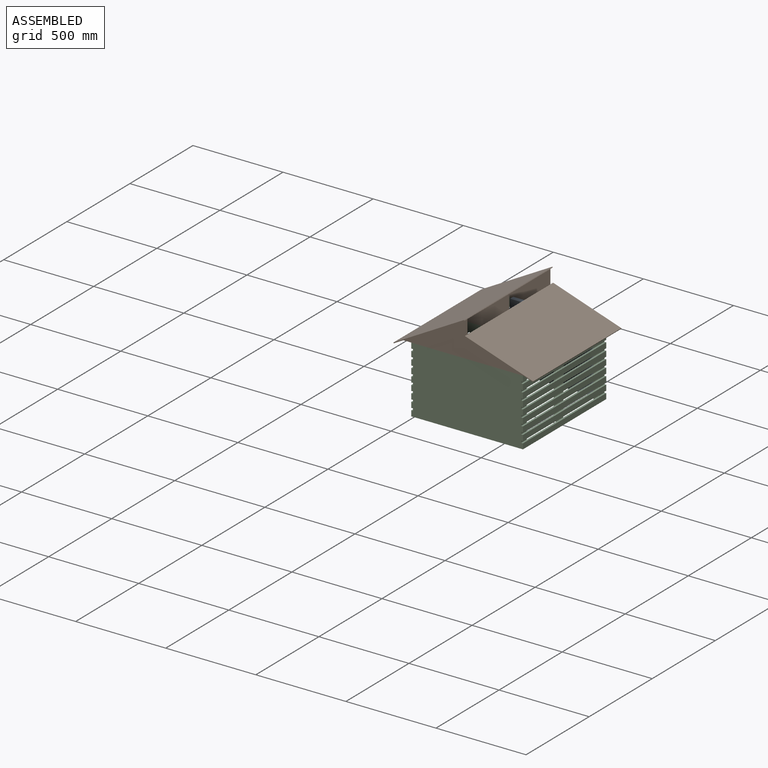
[diagram: assembled view]
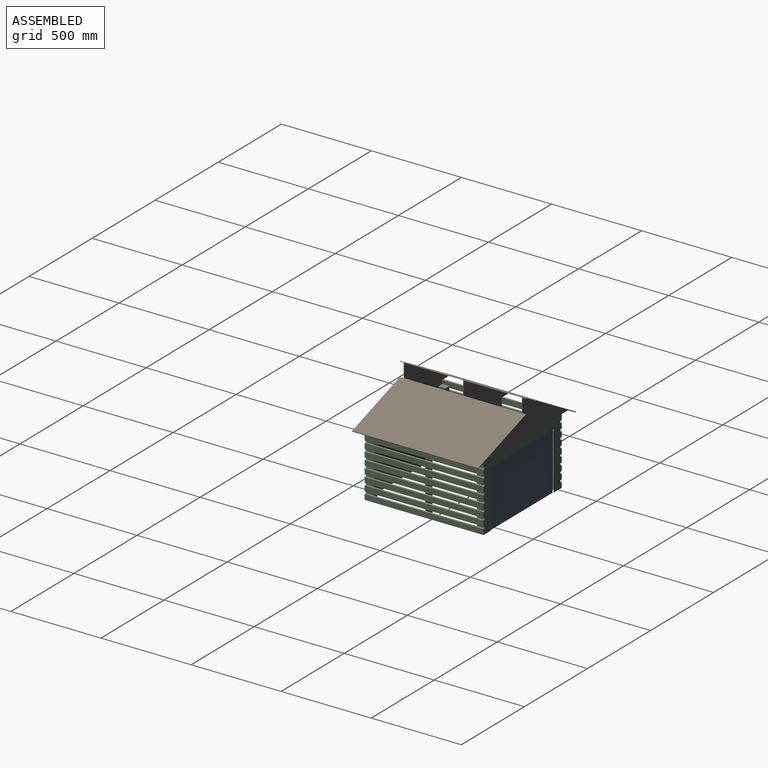
[diagram: assembled view, second angle]
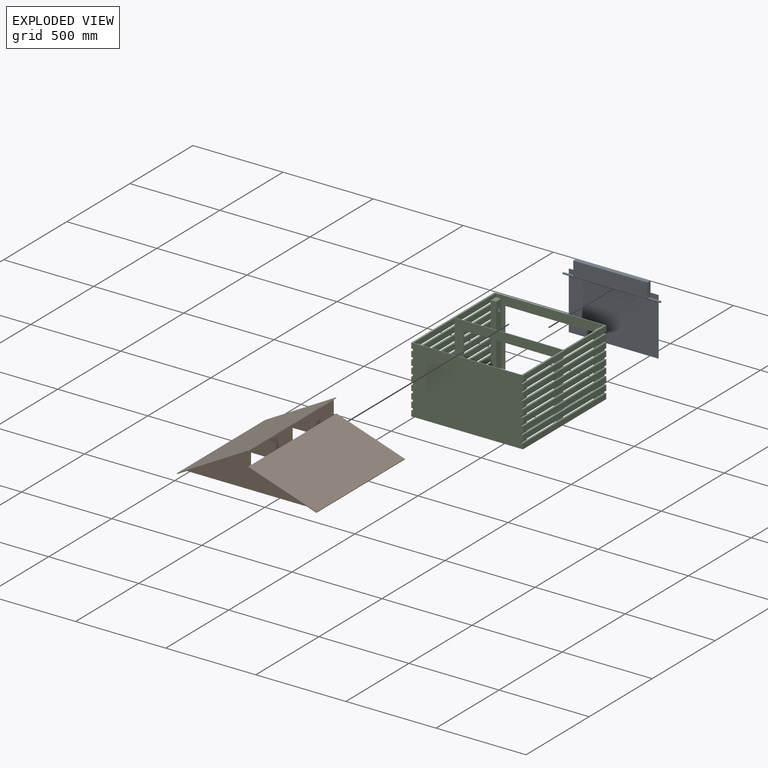
[diagram: exploded view]
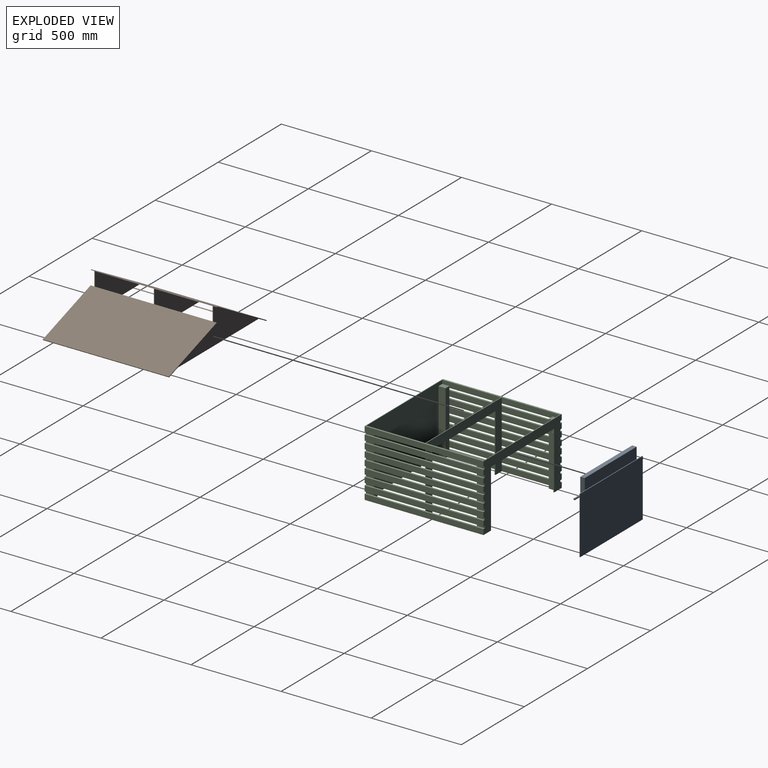
[diagram: exploded view, second angle]
ASSEMBLY  parts=3 mates=2
PART A: 16 faces, bbox 541x29x380 mm
  f0: plane 411.5x9.5mm, normal (0,0,-1), area 3909.3mm2, adj f2,f4,f5,f8
  f1: plane 411.5x9.5mm, normal (0,0,-1), area 3909.3mm2, adj f2,f3,f4,f5
  f2: plane 81x25mm, normal (1,0,0), area 2020.9mm2, adj f0,f1,f3,f5,f8,f14,f15
  f3: plane 411.5x81mm, normal (0,-1,0), area 33331.5mm2, adj f1,f2,f4,f15
  f4: plane 81x25mm, normal (-1,0,0), area 2020.9mm2, adj f0,f1,f3,f5,f8,f14,f15
  f5: cylinder r=5mm len=541mm, axis (-1,0,0), area 14348mm2, adj f0,f1,f2,f4,f6,f7
  f6: plane 10x10mm, normal (1,0,0), area 78.5mm2, adj f5
  f7: plane 10x10mm, normal (-1,0,0), area 78.5mm2, adj f5
  f8: plane 496x318mm, normal (0,-1,0), area 149909.5mm2, adj f0,f2,f4,f9,f10,f11,f12
  f9: plane 496x4mm, normal (0,0,1), area 1984mm2, adj f8,f10,f12,f13,f14
  f10: plane 318x4mm, normal (-1,0,0), area 1272mm2, adj f8,f9,f11,f13
  f11: plane 496x4mm, normal (0,0,-1), area 1984mm2, adj f8,f10,f12,f13
  f12: plane 318x4mm, normal (1,0,0), area 1272mm2, adj f8,f9,f11,f13
  f13: plane 496x318mm, normal (0,1,0), area 157728mm2, adj f9,f10,f11,f12
  f14: plane 411.5x62mm, normal (0,1,0), area 25513mm2, adj f2,f4,f9,f15
  f15: plane 411.5x25mm, normal (0,0,1), area 10287.5mm2, adj f2,f3,f4,f14
PART B: 38 faces, bbox 776.1x700x222 mm
  f0: plane 720x200.14mm, normal (0,-1,0), area 57684.6mm2, adj f4,f5,f12,f13,f14,f18,f19,f25
  f1: plane 720x200.14mm, normal (0,1,0), area 57687.4mm2, adj f9,f11,f12,f13,f14,f25,f31,f37
  f2: plane 720x200.14mm, normal (0,-1,0), area 57684.6mm2, adj f8,f10,f15,f16,f17,f23,f24,f25
  f3: plane 720x200.14mm, normal (0,1,0), area 57684.6mm2, adj f4,f5,f15,f16,f17,f18,f19,f25
  f4: plane 322x0.14mm, normal (1,0,0), area 45.4mm2, adj f0,f3,f18,f37
  f5: plane 322x0.14mm, normal (-1,0,0), area 45.4mm2, adj f0,f3,f19,f37
  f6: plane 720x200.14mm, normal (0,1,0), area 57684.6mm2, adj f8,f10,f20,f21,f22,f23,f24,f25
  f7: plane 720x200.14mm, normal (0,-1,0), area 57687.4mm2, adj f9,f11,f20,f21,f22,f25,f31,f37
  f8: plane 326x0.14mm, normal (1,0,0), area 45.9mm2, adj f2,f6,f23,f37
  f9: plane 660x0.14mm, normal (-1,0,0), area 93mm2, adj f1,f7,f12,f15,f18,f20,f23,f37
  f10: plane 326x0.14mm, normal (-1,0,0), area 45.9mm2, adj f2,f6,f24,f37
  f11: plane 660x0.14mm, normal (1,0,0), area 93mm2, adj f1,f7,f13,f16,f19,f21,f24,f37
  f12: plane 50x4mm, normal (0,0,-1), area 200mm2, adj f0,f1,f9,f31
  f13: plane 50x4mm, normal (0,0,-1), area 200mm2, adj f0,f1,f11,f25
  f14: plane 80x4mm, normal (1,0,0), area 320mm2, adj f0,f1,f28,f34
  f15: plane 50x4mm, normal (0,0,-1), area 200mm2, adj f2,f3,f9,f31
  f16: plane 50x4mm, normal (0,0,-1), area 200mm2, adj f2,f3,f11,f25
  f17: plane 80x4mm, normal (1,0,0), area 320mm2, adj f2,f3,f28,f34
  f18: plane 322x10mm, normal (0,0,1), area 3220mm2, adj f0,f3,f4,f9
  f19: plane 322x10mm, normal (0,0,1), area 3220mm2, adj f0,f3,f5,f11
  f20: plane 50x4mm, normal (0,0,-1), area 200mm2, adj f6,f7,f9,f31
  f21: plane 50x4mm, normal (0,0,-1), area 200mm2, adj f6,f7,f11,f25
  f22: plane 80x4mm, normal (1,0,0), area 320mm2, adj f6,f7,f28,f34
  f23: plane 326x10mm, normal (0,0,1), area 3260mm2, adj f2,f6,f8,f9
  f24: plane 326x10mm, normal (0,0,1), area 3260mm2, adj f2,f6,f10,f11
  f25: plane 700x379.47mm, normal (-0.32,0,-0.95), area 275446.3mm2, adj f0,f1,f2,f3,f6,f7,f13,f16
  f26: plane 700x3.79mm, normal (0.95,0,-0.32), area 2800mm2, adj f25,f27,f29,f30
  f27: plane 380.74x130.29mm, normal (0,1,0), area 1600mm2, adj f25,f26,f28,f30
  f28: plane 700x3.79mm, normal (-0.95,0,0.32), area 2800mm2, adj f14,f17,f22,f25,f27,f29,f30
  f29: plane 380.74x130.29mm, normal (0,-1,0), area 1600mm2, adj f25,f26,f28,f30
  f30: plane 700x379.47mm, normal (0.32,0,0.95), area 280000mm2, adj f26,f27,f28,f29
  f31: plane 700x393.37mm, normal (0.49,0,-0.87), area 310058.1mm2, adj f0,f1,f2,f3,f6,f7,f12,f15
  f32: plane 700x3.5mm, normal (-0.87,0,-0.49), area 2800mm2, adj f31,f33,f35,f36
  f33: plane 395.31x222.04mm, normal (0,-1,0), area 1800mm2, adj f31,f32,f34,f36
  f34: plane 700x3.5mm, normal (0.87,0,0.49), area 2800mm2, adj f14,f17,f22,f31,f33,f35,f36
  f35: plane 395.31x222.04mm, normal (0,1,0), area 1800mm2, adj f31,f32,f34,f36
  f36: plane 700x393.37mm, normal (-0.49,0,0.87), area 315000mm2, adj f32,f33,f34,f35
  f37: plane 660x620mm, normal (0,0,-1), area 20400mm2, adj f0,f1,f2,f3,f4,f5,f6,f7
PART C: 193 faces, bbox 620x660x370 mm
  f0: cylinder r=5mm len=10mm, axis (-1,0,0), area 149.2mm2, adj f2,f188
  f1: cylinder r=10mm len=20mm, axis (-1,0,0), area 298.5mm2, adj f2,f98
  f2: plane 20x20mm, normal (1,0,0), area 235.6mm2, adj f0,f1
  f3: plane 660x30mm, normal (1,0,0), area 19800mm2, adj f4,f50,f181,f185
  f4: plane 660x620mm, normal (0,0,1), area 20400mm2, adj f3,f60,f94,f100,f132,f134,f181,f182
  f5: plane 660x30mm, normal (1,0,0), area 19800mm2, adj f36,f37,f181,f185
  f6: plane 660x30mm, normal (1,0,0), area 19800mm2, adj f33,f34,f181,f185
  f7: plane 660x30mm, normal (1,0,0), area 19800mm2, adj f32,f161,f181,f185
  f8: plane 660x30mm, normal (1,0,0), area 19800mm2, adj f28,f29,f181,f185
  f9: plane 660x30mm, normal (1,0,0), area 19800mm2, adj f25,f26,f181,f185
  f10: plane 660x30mm, normal (1,0,0), area 19800mm2, adj f22,f23,f181,f185
  f11: plane 660x30mm, normal (1,0,0), area 19800mm2, adj f19,f20,f181,f185
  f12: plane 350x30mm, normal (0,1,0), area 10500mm2, adj f13,f14,f15,f161
  f13: plane 350x39.78mm, normal (1,0,0), area 13923.8mm2, adj f12,f15,f161,f182
  f14: plane 350x39.77mm, normal (-1,0,0), area 13920mm2, adj f12,f15,f161,f182
  f15: plane 39.78x30.01mm, normal (0,0,1), area 1193.3mm2, adj f12,f13,f14,f182
  f16: plane 660x10mm, normal (0,0,1), area 6595.4mm2, adj f18,f43,f57,f59,f64,f118,f124,f145
  f17: plane 660x10mm, normal (0,0,-1), area 6595.4mm2, adj f18,f49,f56,f59,f65,f119,f124,f146
  f18: plane 286.01x30mm, normal (-1,0,0), area 8580.2mm2, adj f16,f17,f59,f184
  f19: plane 660x10mm, normal (0,0,-1), area 6595.2mm2, adj f11,f21,f43,f57,f59,f64,f118,f125
  f20: plane 660x10mm, normal (0,0,1), area 6595.2mm2, adj f11,f21,f48,f58,f59,f63,f117,f125
  f21: plane 286.01x30mm, normal (-1,0,0), area 8580.2mm2, adj f19,f20,f59,f184
  f22: plane 660x10mm, normal (0,0,1), area 6595.4mm2, adj f10,f24,f49,f56,f59,f65,f119,f126
  f23: plane 660x10mm, normal (0,0,-1), area 6595.4mm2, adj f10,f24,f47,f55,f59,f66,f120,f126
  f24: plane 286.01x30mm, normal (-1,0,0), area 8580.2mm2, adj f22,f23,f59,f184
  f25: plane 660x10mm, normal (0,0,-1), area 6595.4mm2, adj f9,f27,f46,f54,f59,f67,f121,f127
  f26: plane 660x10mm, normal (0,0,1), area 6595.4mm2, adj f9,f27,f47,f55,f59,f66,f120,f127
  f27: plane 286.01x30mm, normal (-1,0,0), area 8580.2mm2, adj f25,f26,f59,f184
  f28: plane 660x10mm, normal (0,0,1), area 6595.4mm2, adj f8,f30,f46,f54,f59,f67,f121,f128
  f29: plane 660x10mm, normal (0,0,-1), area 6595.4mm2, adj f8,f30,f45,f51,f59,f68,f122,f128
  f30: plane 286.01x30mm, normal (-1,0,0), area 8580.2mm2, adj f28,f29,f59,f184
  f31: plane 286.01x30mm, normal (-1,0,0), area 8580.2mm2, adj f32,f59,f161,f184
  f32: plane 660x10mm, normal (0,0,1), area 6595.2mm2, adj f7,f31,f44,f53,f59,f70,f116,f129
  f33: plane 660x10mm, normal (0,0,1), area 6595.4mm2, adj f6,f35,f41,f52,f59,f69,f123,f130
  f34: plane 660x10mm, normal (0,0,-1), area 6595.4mm2, adj f6,f35,f44,f53,f59,f70,f116,f130
  f35: plane 286.01x30mm, normal (-1,0,0), area 8580.2mm2, adj f33,f34,f59,f184
  f36: plane 660x10mm, normal (0,0,1), area 6595.2mm2, adj f5,f38,f45,f51,f59,f68,f122,f131
  f37: plane 660x10mm, normal (0,0,-1), area 6595.2mm2, adj f5,f38,f41,f52,f59,f69,f123,f131
  f38: plane 286.01x30mm, normal (-1,0,0), area 8580.2mm2, adj f36,f37,f59,f184
  f39: plane 40x30mm, normal (0,0,1), area 1199.9mm2, adj f40,f42,f132,f186
  f40: plane 350x30mm, normal (0,-1,0), area 10499.4mm2, adj f39,f41,f42,f43,f44,f45,f46,f47
  f41: plane 40.01x12.51mm, normal (1,0,0), area 500mm2, adj f33,f37,f40,f171
  f42: plane 350x40mm, normal (-1,0,0), area 13685.8mm2, adj f39,f40,f161,f186,f190
  f43: plane 40.01x12.51mm, normal (1,0,0), area 500mm2, adj f16,f19,f40,f165
  f44: plane 40.01x12.51mm, normal (1,0,0), area 500mm2, adj f32,f34,f40,f169
  f45: plane 40.01x12.51mm, normal (1,0,0), area 500mm2, adj f29,f36,f40,f170
  f46: plane 40.01x12.51mm, normal (1,0,0), area 500mm2, adj f25,f28,f40,f168
  f47: plane 40.01x12.51mm, normal (1,0,0), area 500mm2, adj f23,f26,f40,f167
  f48: plane 40.01x12.51mm, normal (1,0,0), area 500mm2, adj f20,f40,f50,f172
  f49: plane 40.01x12.51mm, normal (1,0,0), area 500mm2, adj f17,f22,f40,f166
  f50: plane 660x10mm, normal (0,0,-1), area 6595.2mm2, adj f3,f48,f58,f59,f60,f63,f117,f132
  f51: plane 40x12.5mm, normal (1,0,0), area 500mm2, adj f29,f36,f59,f68
  f52: plane 40x12.5mm, normal (1,0,0), area 500mm2, adj f33,f37,f59,f69
  f53: plane 40x12.5mm, normal (1,0,0), area 500mm2, adj f32,f34,f59,f70
  f54: plane 40x12.5mm, normal (1,0,0), area 500mm2, adj f25,f28,f59,f67
  f55: plane 40x12.5mm, normal (1,0,0), area 500mm2, adj f23,f26,f59,f66
  f56: plane 40x12.5mm, normal (1,0,0), area 500mm2, adj f17,f22,f59,f65
  f57: plane 40x12.5mm, normal (1,0,0), area 500mm2, adj f16,f19,f59,f64
  f58: plane 40x12.5mm, normal (1,0,0), area 500mm2, adj f20,f50,f59,f63
  f59: plane 350x30mm, normal (0,1,0), area 10472.8mm2, adj f16,f17,f18,f19,f20,f21,f22,f23
  f60: plane 326x30mm, normal (-1,0,0), area 9380.1mm2, adj f4,f50,f59,f62,f182,f184
  f61: plane 350x39.98mm, normal (-1,0,0), area 13993.2mm2, adj f59,f62,f161,f182
  f62: plane 39.99x29.89mm, normal (0,0,1), area 1194.9mm2, adj f59,f60,f61,f182
  f63: plane 12.5x0.12mm, normal (0,-1,0), area 1.5mm2, adj f20,f50,f58,f117
  f64: plane 12.5x0.12mm, normal (0,-1,0), area 1.5mm2, adj f16,f19,f57,f118
  f65: plane 12.5x0.12mm, normal (0,-1,0), area 1.5mm2, adj f17,f22,f56,f119
  f66: plane 12.5x0.12mm, normal (0,-1,0), area 1.5mm2, adj f23,f26,f55,f120
  f67: plane 12.5x0.12mm, normal (0,-1,0), area 1.5mm2, adj f25,f28,f54,f121
  f68: plane 12.5x0.12mm, normal (0,-1,0), area 1.5mm2, adj f29,f36,f51,f122
  f69: plane 12.5x0.12mm, normal (0,-1,0), area 1.5mm2, adj f33,f37,f52,f123
  f70: plane 12.5x0.12mm, normal (0,-1,0), area 1.5mm2, adj f32,f34,f53,f116
  f71: plane 660x30mm, normal (-1,0,0), area 19800mm2, adj f72,f161,f181,f185
  f72: plane 660x10mm, normal (0,0,1), area 6600mm2, adj f71,f99,f108,f133,f153,f173,f181,f185
  f73: plane 660x30mm, normal (-1,0,0), area 19800mm2, adj f74,f75,f181,f185
  f74: plane 660x10mm, normal (0,0,1), area 6600mm2, adj f73,f101,f110,f135,f155,f175,f181,f185
  f75: plane 660x10mm, normal (0,0,-1), area 6600mm2, adj f73,f101,f108,f135,f153,f173,f181,f185
  f76: plane 660x30mm, normal (-1,0,0), area 19800mm2, adj f77,f78,f181,f185
  f77: plane 660x10mm, normal (0,0,1), area 6600mm2, adj f76,f102,f109,f136,f154,f174,f181,f185
  f78: plane 660x10mm, normal (0,0,-1), area 6600mm2, adj f76,f102,f110,f136,f155,f175,f181,f185
  f79: plane 660x30mm, normal (-1,0,0), area 19800mm2, adj f80,f81,f181,f185
  f80: plane 660x10mm, normal (0,0,1), area 6600mm2, adj f79,f103,f111,f137,f156,f176,f181,f185
  f81: plane 660x10mm, normal (0,0,-1), area 6600mm2, adj f79,f103,f109,f137,f154,f174,f181,f185
  f82: plane 660x30mm, normal (-1,0,0), area 19800mm2, adj f83,f84,f181,f185
  f83: plane 660x10mm, normal (0,0,-1), area 6600mm2, adj f82,f104,f111,f138,f156,f176,f181,f185
  f84: plane 660x10mm, normal (0,0,1), area 6600mm2, adj f82,f104,f112,f138,f157,f177,f181,f185
  f85: plane 660x30mm, normal (-1,0,0), area 19800mm2, adj f86,f87,f181,f185
  f86: plane 660x10mm, normal (0,0,1), area 6600mm2, adj f85,f105,f113,f139,f159,f178,f181,f185
  f87: plane 660x10mm, normal (0,0,-1), area 6600mm2, adj f85,f105,f112,f139,f157,f177,f181,f185
  f88: plane 660x30mm, normal (-1,0,0), area 19800mm2, adj f89,f90,f181,f185
  f89: plane 660x10mm, normal (0,0,-1), area 6600mm2, adj f88,f106,f114,f140,f160,f179,f181,f185
  f90: plane 660x10mm, normal (0,0,1), area 6600mm2, adj f88,f106,f115,f140,f158,f180,f181,f185
  f91: plane 660x30mm, normal (-1,0,0), area 19800mm2, adj f92,f93,f181,f185
  f92: plane 660x10mm, normal (0,0,1), area 6600mm2, adj f91,f107,f114,f141,f160,f179,f181,f185
  f93: plane 660x10mm, normal (0,0,-1), area 6600mm2, adj f91,f107,f113,f141,f159,f178,f181,f185
  f94: plane 660x30mm, normal (-1,0,0), area 19800mm2, adj f4,f95,f181,f185
  f95: plane 660x10mm, normal (0,0,-1), area 6600mm2, adj f94,f100,f115,f134,f158,f180,f181,f185
  f96: plane 40x30mm, normal (0,0,1), area 1200mm2, adj f97,f98,f134,f186
  f97: plane 350x30mm, normal (0,-1,0), area 10500mm2, adj f96,f98,f133,f134,f135,f136,f137,f138
  f98: plane 350x40mm, normal (1,0,0), area 13685.8mm2, adj f1,f96,f97,f161,f186
  f99: plane 326x30mm, normal (1,0,0), area 9780mm2, adj f72,f161,f182,f184
  f100: plane 326x30mm, normal (1,0,0), area 9780mm2, adj f4,f95,f182,f184
  f101: plane 326x30mm, normal (1,0,0), area 9780mm2, adj f74,f75,f182,f184
  f102: plane 326x30mm, normal (1,0,0), area 9780mm2, adj f77,f78,f182,f184
  f103: plane 326x30mm, normal (1,0,0), area 9780mm2, adj f80,f81,f182,f184
  f104: plane 326x30mm, normal (1,0,0), area 9780mm2, adj f83,f84,f182,f184
  f105: plane 326x30mm, normal (1,0,0), area 9780mm2, adj f86,f87,f182,f184
  f106: plane 326x30mm, normal (1,0,0), area 9780mm2, adj f89,f90,f182,f184
  f107: plane 326x30mm, normal (1,0,0), area 9780mm2, adj f92,f93,f182,f184
  f108: plane 12.5x4mm, normal (-1,0,0), area 50mm2, adj f72,f75,f181,f182
  f109: plane 12.5x4mm, normal (-1,0,0), area 50mm2, adj f77,f81,f181,f182
  f110: plane 12.5x4mm, normal (-1,0,0), area 50mm2, adj f74,f78,f181,f182
  f111: plane 12.5x4mm, normal (-1,0,0), area 50mm2, adj f80,f83,f181,f182
  f112: plane 12.5x4mm, normal (-1,0,0), area 50mm2, adj f84,f87,f181,f182
  f113: plane 12.5x4mm, normal (-1,0,0), area 50mm2, adj f86,f93,f181,f182
  f114: plane 12.5x4mm, normal (-1,0,0), area 50mm2, adj f89,f92,f181,f182
  f115: plane 12.5x4mm, normal (-1,0,0), area 50mm2, adj f90,f95,f181,f182
  f116: plane 12.5x3.99mm, normal (1,0,0), area 49.9mm2, adj f32,f34,f70,f181
  f117: plane 12.5x3.99mm, normal (1,0,0), area 49.9mm2, adj f20,f50,f63,f181
  f118: plane 12.5x3.99mm, normal (1,0,0), area 49.9mm2, adj f16,f19,f64,f181
  f119: plane 12.5x3.99mm, normal (1,0,0), area 49.9mm2, adj f17,f22,f65,f181
  f120: plane 12.5x3.99mm, normal (1,0,0), area 49.9mm2, adj f23,f26,f66,f181
  f121: plane 12.5x3.99mm, normal (1,0,0), area 49.9mm2, adj f25,f28,f67,f181
  f122: plane 12.5x3.99mm, normal (1,0,0), area 49.9mm2, adj f29,f36,f68,f181
  f123: plane 12.5x3.99mm, normal (1,0,0), area 49.9mm2, adj f33,f37,f69,f181
  f124: plane 282x30mm, normal (-1,0,0), area 8460mm2, adj f16,f17,f40,f183
  f125: plane 282x30mm, normal (-1,0,0), area 8460mm2, adj f19,f20,f40,f183
  f126: plane 282x30mm, normal (-1,0,0), area 8460mm2, adj f22,f23,f40,f183
  f127: plane 282x30mm, normal (-1,0,0), area 8460mm2, adj f25,f26,f40,f183
  f128: plane 282x30mm, normal (-1,0,0), area 8460mm2, adj f28,f29,f40,f183
  f129: plane 282x30mm, normal (-1,0,0), area 8460mm2, adj f32,f40,f161,f183
  f130: plane 282x30mm, normal (-1,0,0), area 8460mm2, adj f33,f34,f40,f183
  f131: plane 282x30mm, normal (-1,0,0), area 8460mm2, adj f36,f37,f40,f183
  f132: plane 322x30mm, normal (-1,0,0), area 9260mm2, adj f4,f39,f40,f50,f183,f186
  f133: plane 282x30mm, normal (1,0,0), area 8460mm2, adj f72,f97,f161,f183
  f134: plane 322x30mm, normal (1,0,0), area 9260mm2, adj f4,f95,f96,f97,f183,f186
  f135: plane 282x30mm, normal (1,0,0), area 8460mm2, adj f74,f75,f97,f183
  f136: plane 282x30mm, normal (1,0,0), area 8460mm2, adj f77,f78,f97,f183
  f137: plane 282x30mm, normal (1,0,0), area 8460mm2, adj f80,f81,f97,f183
  f138: plane 282x30mm, normal (1,0,0), area 8460mm2, adj f83,f84,f97,f183
  f139: plane 282x30mm, normal (1,0,0), area 8460mm2, adj f86,f87,f97,f183
  f140: plane 282x30mm, normal (1,0,0), area 8460mm2, adj f89,f90,f97,f183
  f141: plane 282x30mm, normal (1,0,0), area 8460mm2, adj f92,f93,f97,f183
  f142: plane 320x4mm, normal (-1,0,0), area 1280mm2, adj f143,f161,f183,f184
  f143: plane 500x4mm, normal (0,0,-1), area 2000mm2, adj f142,f144,f183,f184
  f144: plane 320x4mm, normal (1,0,0), area 1280mm2, adj f143,f161,f183,f184
  f145: plane 12.5x4mm, normal (1,0,0), area 50mm2, adj f16,f19,f183,f184
  f146: plane 12.5x4mm, normal (1,0,0), area 50mm2, adj f17,f22,f183,f184
  f147: plane 12.5x4mm, normal (1,0,0), area 50mm2, adj f23,f26,f183,f184
  f148: plane 12.5x4mm, normal (1,0,0), area 50mm2, adj f25,f28,f183,f184
  f149: plane 12.5x4mm, normal (1,0,0), area 50mm2, adj f32,f34,f183,f184
  f150: plane 12.5x4mm, normal (1,0,0), area 50mm2, adj f29,f36,f183,f184
  f151: plane 12.5x4mm, normal (1,0,0), area 50mm2, adj f33,f37,f183,f184
  f152: plane 12.5x4mm, normal (1,0,0), area 50mm2, adj f20,f50,f183,f184
  f153: plane 12.5x4mm, normal (-1,0,0), area 50mm2, adj f72,f75,f183,f184
  f154: plane 12.5x4mm, normal (-1,0,0), area 50mm2, adj f77,f81,f183,f184
  f155: plane 12.5x4mm, normal (-1,0,0), area 50mm2, adj f74,f78,f183,f184
  f156: plane 12.5x4mm, normal (-1,0,0), area 50mm2, adj f80,f83,f183,f184
  f157: plane 12.5x4mm, normal (-1,0,0), area 50mm2, adj f84,f87,f183,f184
  f158: plane 12.5x4mm, normal (-1,0,0), area 50mm2, adj f90,f95,f183,f184
  f159: plane 12.5x4mm, normal (-1,0,0), area 50mm2, adj f86,f93,f183,f184
  f160: plane 12.5x4mm, normal (-1,0,0), area 50mm2, adj f89,f92,f183,f184
  f161: plane 660x620mm, normal (0,0,-1), area 21188.1mm2, adj f7,f12,f13,f14,f31,f40,f42,f59
  f162: plane 320x4mm, normal (-1,0,0), area 1280mm2, adj f161,f163,f185,f186
  f163: plane 500x4mm, normal (0,0,-1), area 2000mm2, adj f162,f164,f185,f186
  f164: plane 320x4mm, normal (1,0,0), area 1280mm2, adj f161,f163,f185,f186
  f165: plane 12.51x4.01mm, normal (1,0,0), area 50mm2, adj f16,f19,f43,f185
  f166: plane 12.51x4.01mm, normal (1,0,0), area 50mm2, adj f17,f22,f49,f185
  f167: plane 12.51x4.01mm, normal (1,0,0), area 50mm2, adj f23,f26,f47,f185
  f168: plane 12.51x4.01mm, normal (1,0,0), area 50mm2, adj f25,f28,f46,f185
  f169: plane 12.51x4.01mm, normal (1,0,0), area 50mm2, adj f32,f34,f44,f185
  f170: plane 12.51x4.01mm, normal (1,0,0), area 50mm2, adj f29,f36,f45,f185
  f171: plane 12.51x4.01mm, normal (1,0,0), area 50mm2, adj f33,f37,f41,f185
  f172: plane 12.51x4.01mm, normal (1,0,0), area 50mm2, adj f20,f48,f50,f185
  f173: plane 44x12.5mm, normal (-1,0,0), area 550mm2, adj f72,f75,f97,f185
  f174: plane 44x12.5mm, normal (-1,0,0), area 550mm2, adj f77,f81,f97,f185
  f175: plane 44x12.5mm, normal (-1,0,0), area 550mm2, adj f74,f78,f97,f185
  f176: plane 44x12.5mm, normal (-1,0,0), area 550mm2, adj f80,f83,f97,f185
  f177: plane 44x12.5mm, normal (-1,0,0), area 550mm2, adj f84,f87,f97,f185
  f178: plane 44x12.5mm, normal (-1,0,0), area 550mm2, adj f86,f93,f97,f185
  f179: plane 44x12.5mm, normal (-1,0,0), area 550mm2, adj f89,f92,f97,f185
  f180: plane 44x12.5mm, normal (-1,0,0), area 550mm2, adj f90,f95,f97,f185
  f181: plane 620x370mm, normal (0,-1,0), area 227400mm2, adj f3,f4,f5,f6,f7,f8,f9,f10
  f182: plane 600x370mm, normal (0,1,0), area 201043.2mm2, adj f4,f13,f14,f15,f60,f61,f62,f99
  f183: plane 600x370mm, normal (0,1,0), area 62000mm2, adj f4,f124,f125,f126,f127,f128,f129,f130
  f184: plane 600x370mm, normal (0,-1,0), area 62000mm2, adj f4,f18,f21,f24,f27,f30,f31,f35
  f185: plane 620x370mm, normal (0,1,0), area 67400mm2, adj f3,f4,f5,f6,f7,f8,f9,f10
  f186: plane 600x370mm, normal (0,-1,0), area 41001.3mm2, adj f4,f39,f42,f96,f98,f132,f134,f161
  f187: plane 660x30mm, normal (1,0,0), area 19800mm2, adj f16,f17,f181,f185
  f188: plane 10x10mm, normal (1,0,0), area 78.5mm2, adj f0
  f189: cylinder r=5mm len=10mm, axis (1,0,0), area 133.6mm2, adj f191,f192
  f190: cylinder r=10mm len=20mm, axis (1,0,0), area 267.2mm2, adj f42,f191
  f191: plane 20x20mm, normal (-1,0,0), area 235.6mm2, adj f189,f190
  f192: plane 10x10mm, normal (-1,0,0), area 78.5mm2, adj f189
PLACE A t=(1521.36,1311.37,1533.96)mm
PLACE B t=(1516.36,1311.37,1534.03)mm
PLACE C t=(1516.36,1311.37,1533.96)mm fixed
MATE revolute A.f5 <-> C.f0  axis (-1,0,0) through (1551.11,1290.87,1828.96)mm
MATE revolute B.f1 <-> C.f185  axis (0,1,0) through (1506.36,1311.37,1903.96)mm
